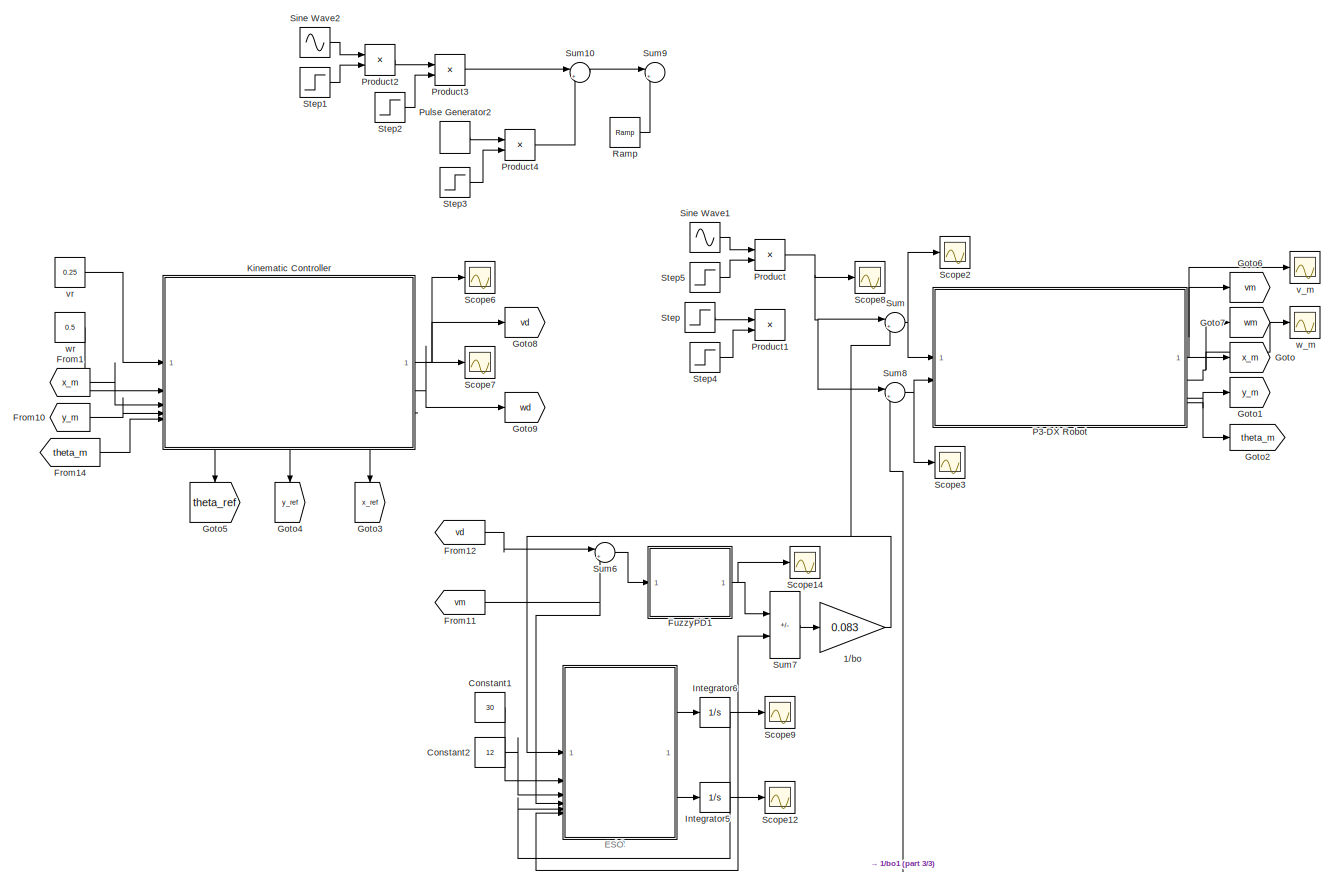
[diagram: root canvas - part 1/3, middle left region]
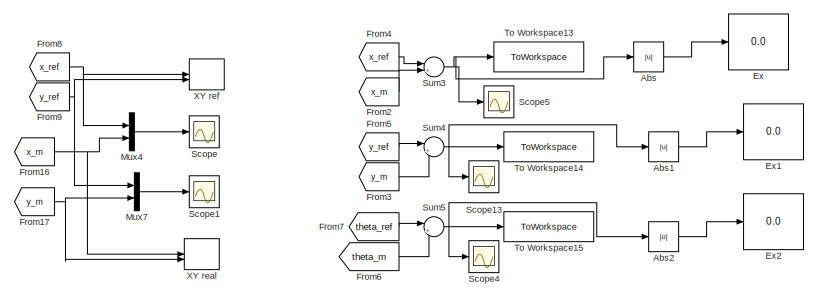
[diagram: root canvas - part 2/3, top right region]
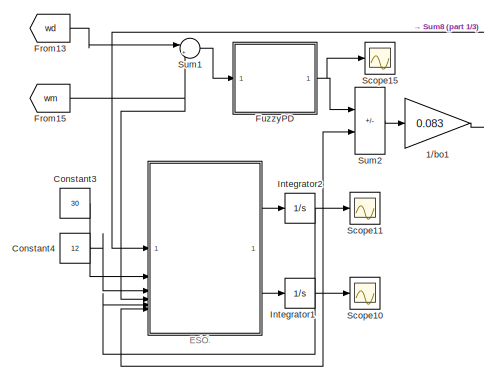
[diagram: root canvas - part 3/3, bottom left region]
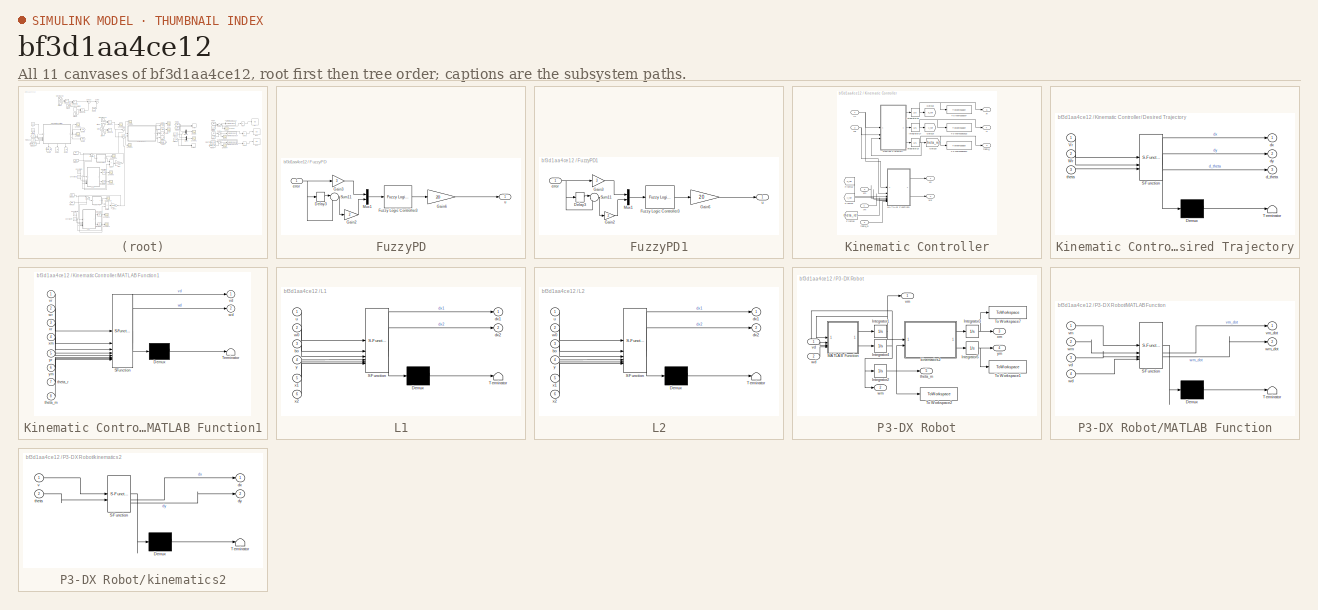
[diagram: thumbnail index - all 11 canvases of the model, root first then tree order]
MODEL slx_bf3d1aa4ce12
KIND model
CONFIG AbsTol = auto
CONFIG EnableMultiTasking = off
CONFIG FixedStep = 0.01
CONFIG MaxStep = auto
CONFIG MinStep = auto
CONFIG RelTol = 1e-2
CONFIG SampleTimeConstraint = Unconstrained
CONFIG SolverName = FixedStepAuto
CONFIG StartTime = 0.0
CONFIG StopTime = 16
BLOCK [Gain] 1//bo
  Gain = 0.083
BLOCK [Gain] 1//bo1
  Gain = 0.083
BLOCK [Abs] Abs
  SaturateOnIntegerOverflow = off
BLOCK [Abs] Abs1
  SaturateOnIntegerOverflow = off
BLOCK [Abs] Abs2
  SaturateOnIntegerOverflow = off
BLOCK [Constant] Constant1
  Value = 30
BLOCK [Constant] Constant2
  Value = 12
BLOCK [Constant] Constant3
  Value = 30
BLOCK [Constant] Constant4
  Value = 12
BLOCK [Display] Ex
  Decimation = 1
BLOCK [Display] Ex1
  Decimation = 1
BLOCK [Display] Ex2
  Decimation = 1
BLOCK [From] From1
  GotoTag = x_m
BLOCK [From] From10
  GotoTag = y_m
BLOCK [From] From11
  GotoTag = vm
BLOCK [From] From12
  GotoTag = vd
BLOCK [From] From13
  GotoTag = wd
BLOCK [From] From14
  GotoTag = theta_m
BLOCK [From] From15
  GotoTag = wm
BLOCK [From] From16
  GotoTag = x_m
BLOCK [From] From17
  GotoTag = y_m
BLOCK [From] From2
  GotoTag = x_m
BLOCK [From] From3
  GotoTag = y_m
BLOCK [From] From4
  GotoTag = x_ref
BLOCK [From] From5
  GotoTag = y_ref
BLOCK [From] From6
  GotoTag = theta_m
BLOCK [From] From7
  GotoTag = theta_ref
BLOCK [From] From8
  GotoTag = x_ref
BLOCK [From] From9
  GotoTag = y_ref
BLOCK [SubSystem] FuzzyPD
BLOCK [Delay] FuzzyPD/Delay3
  DelayLength = 1
  InitialCondition = 0
  InputPortMap = u0
BLOCK [Reference] FuzzyPD/Fuzzy Logic Controller3  REF=fuzblock/Fuzzy Logic   (lib defined in mdl_858b3b3e7478)
Controller
  SourceBlock = fuzblock/Fuzzy Logic \nController
  SourceType = Fuzzy Inference System
BLOCK [Gain] FuzzyPD/Gain2
  Gain = 2
BLOCK [Gain] FuzzyPD/Gain3
  Gain = 3
BLOCK [Gain] FuzzyPD/Gain6
  Gain = 20
BLOCK [Mux] FuzzyPD/Mux1
  DisplayOption = bar
  Inputs = 2
BLOCK [Sum] FuzzyPD/Sum11
  Inputs = |-+
BLOCK [Inport] FuzzyPD/error
BLOCK [Outport] FuzzyPD/u
BLOCK [SubSystem] FuzzyPD1
BLOCK [Delay] FuzzyPD1/Delay3
  DelayLength = 1
  InitialCondition = 0
  InputPortMap = u0
BLOCK [Reference] FuzzyPD1/Fuzzy Logic Controller3  REF=fuzblock/Fuzzy Logic   (lib defined in mdl_858b3b3e7478)
Controller
  SourceBlock = fuzblock/Fuzzy Logic \nController
  SourceType = Fuzzy Inference System
BLOCK [Gain] FuzzyPD1/Gain2
  Gain = 2
BLOCK [Gain] FuzzyPD1/Gain3
  Gain = 3
BLOCK [Gain] FuzzyPD1/Gain6
  Gain = 20
BLOCK [Mux] FuzzyPD1/Mux1
  DisplayOption = bar
  Inputs = 2
BLOCK [Sum] FuzzyPD1/Sum11
  Inputs = |-+
BLOCK [Inport] FuzzyPD1/error
BLOCK [Outport] FuzzyPD1/u
BLOCK [Goto] Goto
  GotoTag = x_m
BLOCK [Goto] Goto1
  GotoTag = y_m
BLOCK [Goto] Goto2
  GotoTag = theta_m
BLOCK [Goto] Goto3
  GotoTag = x_ref
  NameLocation = left
BLOCK [Goto] Goto4
  GotoTag = y_ref
  NameLocation = left
BLOCK [Goto] Goto5
  GotoTag = theta_ref
  NameLocation = left
BLOCK [Goto] Goto6
  GotoTag = vm
BLOCK [Goto] Goto7
  GotoTag = wm
BLOCK [Goto] Goto8
  GotoTag = vd
BLOCK [Goto] Goto9
  GotoTag = wd
BLOCK [Integrator] Integrator1
BLOCK [Integrator] Integrator2
BLOCK [Integrator] Integrator5
BLOCK [Integrator] Integrator6
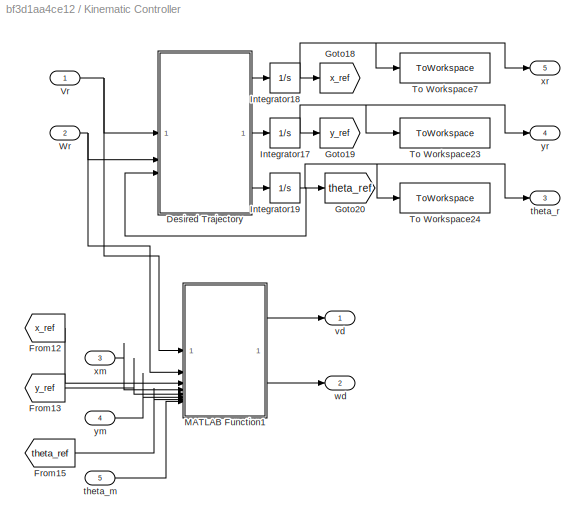
BLOCK [SubSystem] Kinematic Controller
  PortSchema = {"entries":[{"content":{"sides":[{"content":{"connectorIds":["In1","In2","In3","In4","In5"]},"type":"ConnectorPlacement.EquallySpacedRectSide","uuid":"1dde3c4d-b362-4c98-bff5-173134d67a18"},{"content":{"connectorIds":["Out1","Out2"],"side":"RIGHT"},"type":"ConnectorPlacement.EquallySpacedRectSide","uuid":"28a7b07a-1542-4ec6-930a-70e18e33702f"},{"content":{"side":"TOP"},"type":"ConnectorPlacement.E...<+417ch>
BLOCK [SubSystem] Kinematic Controller/ Desired Trajectory
  ErrorFcn = Stateflow.Translate.translate
  PermitHierarchicalResolution = ExplicitOnly
  SFBlockType = MATLAB Function
  TreatAsAtomicUnit = on
BLOCK [Demux] Kinematic Controller/ Desired Trajectory/ Demux 
  Outputs = 1
BLOCK [S-Function] Kinematic Controller/ Desired Trajectory/ SFunction 
  EnableBusSupport = on
  FunctionName = sf_sfun
  PortCounts = [3 4]
  SFcnIsStateOwnerBlock = off
  SFunctionDeploymentMode = off
  Tag = Stateflow S-Function 11
BLOCK [Terminator] Kinematic Controller/ Desired Trajectory/ Terminator 
BLOCK [Inport] Kinematic Controller/ Desired Trajectory/Vr
BLOCK [Inport] Kinematic Controller/ Desired Trajectory/Wr
  Port = 2
BLOCK [Outport] Kinematic Controller/ Desired Trajectory/d_theta
  Port = 3
BLOCK [Outport] Kinematic Controller/ Desired Trajectory/dx
BLOCK [Outport] Kinematic Controller/ Desired Trajectory/dy
  Port = 2
BLOCK [Inport] Kinematic Controller/ Desired Trajectory/theta
  Port = 3
BLOCK [From] Kinematic Controller/From12
  GotoTag = x_ref
BLOCK [From] Kinematic Controller/From13
  GotoTag = y_ref
BLOCK [From] Kinematic Controller/From15
  GotoTag = theta_ref
BLOCK [Goto] Kinematic Controller/Goto18
  GotoTag = x_ref
BLOCK [Goto] Kinematic Controller/Goto19
  GotoTag = y_ref
BLOCK [Goto] Kinematic Controller/Goto20
  GotoTag = theta_ref
BLOCK [Integrator] Kinematic Controller/Integrator17
  InitialCondition = -0.5
BLOCK [Integrator] Kinematic Controller/Integrator18
BLOCK [Integrator] Kinematic Controller/Integrator19
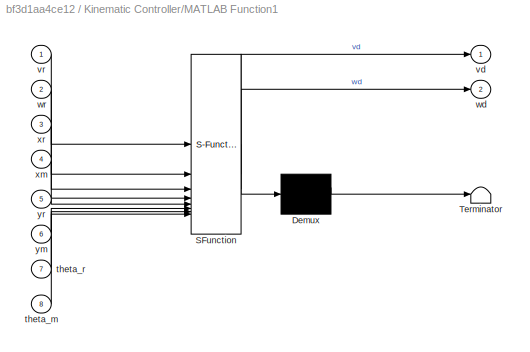
BLOCK [SubSystem] Kinematic Controller/MATLAB Function1
  ErrorFcn = Stateflow.Translate.translate
  PermitHierarchicalResolution = ExplicitOnly
  SFBlockType = MATLAB Function
  TreatAsAtomicUnit = on
BLOCK [Demux] Kinematic Controller/MATLAB Function1/ Demux 
  Outputs = 1
BLOCK [S-Function] Kinematic Controller/MATLAB Function1/ SFunction 
  EnableBusSupport = on
  FunctionName = sf_sfun
  PortCounts = [8 3]
  SFcnIsStateOwnerBlock = off
  SFunctionDeploymentMode = off
  Tag = Stateflow S-Function 1
BLOCK [Terminator] Kinematic Controller/MATLAB Function1/ Terminator 
BLOCK [Inport] Kinematic Controller/MATLAB Function1/theta_m
  Port = 8
BLOCK [Inport] Kinematic Controller/MATLAB Function1/theta_r
  Port = 7
BLOCK [Outport] Kinematic Controller/MATLAB Function1/vd
BLOCK [Inport] Kinematic Controller/MATLAB Function1/vr
BLOCK [Outport] Kinematic Controller/MATLAB Function1/wd
  Port = 2
BLOCK [Inport] Kinematic Controller/MATLAB Function1/wr
  Port = 2
BLOCK [Inport] Kinematic Controller/MATLAB Function1/xm
  Port = 4
BLOCK [Inport] Kinematic Controller/MATLAB Function1/xr
  Port = 3
BLOCK [Inport] Kinematic Controller/MATLAB Function1/ym
  Port = 6
BLOCK [Inport] Kinematic Controller/MATLAB Function1/yr
  Port = 5
BLOCK [ToWorkspace] Kinematic Controller/To Workspace23
  FixptAsFi = on
  MaxDataPoints = inf
  SampleTime = -1
  SaveFormat = Timeseries
  VariableName = y_ref
BLOCK [ToWorkspace] Kinematic Controller/To Workspace24
  FixptAsFi = on
  MaxDataPoints = inf
  SampleTime = -1
  SaveFormat = Timeseries
  VariableName = theta_ref
BLOCK [ToWorkspace] Kinematic Controller/To Workspace7
  FixptAsFi = on
  MaxDataPoints = inf
  SampleTime = -1
  SaveFormat = Timeseries
  VariableName = x_ref
BLOCK [Inport] Kinematic Controller/Vr
BLOCK [Inport] Kinematic Controller/Wr
  Port = 2
BLOCK [Inport] Kinematic Controller/theta_m
  Port = 5
BLOCK [Outport] Kinematic Controller/theta_r
  Port = 3
BLOCK [Outport] Kinematic Controller/vd
BLOCK [Outport] Kinematic Controller/wd
  Port = 2
BLOCK [Inport] Kinematic Controller/xm
  Port = 3
BLOCK [Outport] Kinematic Controller/xr
  Port = 5
BLOCK [Inport] Kinematic Controller/ym
  Port = 4
BLOCK [Outport] Kinematic Controller/yr
  Port = 4
BLOCK [SubSystem] L1
  ErrorFcn = Stateflow.Translate.translate
  PermitHierarchicalResolution = ExplicitOnly
  SFBlockType = MATLAB Function
  TreatAsAtomicUnit = on
BLOCK [Demux] L1/ Demux 
  Outputs = 1
BLOCK [S-Function] L1/ SFunction 
  EnableBusSupport = on
  FunctionName = sf_sfun
  PortCounts = [6 3]
  SFcnIsStateOwnerBlock = off
  SFunctionDeploymentMode = off
  Tag = Stateflow S-Function 4
BLOCK [Terminator] L1/ Terminator 
BLOCK [Inport] L1/bo
  Port = 3
BLOCK [Outport] L1/dx1
BLOCK [Outport] L1/dx2
  Port = 2
BLOCK [Inport] L1/u
BLOCK [Inport] L1/w0
  Port = 2
BLOCK [Inport] L1/x1
  Port = 5
BLOCK [Inport] L1/x2
  Port = 6
BLOCK [Inport] L1/y
  Port = 4
BLOCK [SubSystem] L2
  ErrorFcn = Stateflow.Translate.translate
  PermitHierarchicalResolution = ExplicitOnly
  SFBlockType = MATLAB Function
  TreatAsAtomicUnit = on
BLOCK [Demux] L2/ Demux 
  Outputs = 1
BLOCK [S-Function] L2/ SFunction 
  EnableBusSupport = on
  FunctionName = sf_sfun
  PortCounts = [6 3]
  SFcnIsStateOwnerBlock = off
  SFunctionDeploymentMode = off
  Tag = Stateflow S-Function 9
BLOCK [Terminator] L2/ Terminator 
BLOCK [Inport] L2/bo
  Port = 3
BLOCK [Outport] L2/dx1
BLOCK [Outport] L2/dx2
  Port = 2
BLOCK [Inport] L2/u
BLOCK [Inport] L2/w0
  Port = 2
BLOCK [Inport] L2/x1
  Port = 5
BLOCK [Inport] L2/x2
  Port = 6
BLOCK [Inport] L2/y
  Port = 4
BLOCK [Mux] Mux4
  DisplayOption = bar
  Inputs = 2
BLOCK [Mux] Mux7
  DisplayOption = bar
  Inputs = 2
BLOCK [SubSystem] P3-DX Robot
BLOCK [Integrator] P3-DX Robot/Integrator1
BLOCK [Integrator] P3-DX Robot/Integrator2
BLOCK [Integrator] P3-DX Robot/Integrator3
BLOCK [Integrator] P3-DX Robot/Integrator4
BLOCK [Integrator] P3-DX Robot/Integrator5
BLOCK [SubSystem] P3-DX Robot/MATLAB Function
  ErrorFcn = Stateflow.Translate.translate
  PermitHierarchicalResolution = ExplicitOnly
  SFBlockType = MATLAB Function
  TreatAsAtomicUnit = on
BLOCK [Demux] P3-DX Robot/MATLAB Function/ Demux 
  Outputs = 1
BLOCK [S-Function] P3-DX Robot/MATLAB Function/ SFunction 
  EnableBusSupport = on
  FunctionName = sf_sfun
  PortCounts = [4 3]
  SFcnIsStateOwnerBlock = off
  SFunctionDeploymentMode = off
  Tag = Stateflow S-Function 2
BLOCK [Terminator] P3-DX Robot/MATLAB Function/ Terminator 
BLOCK [Inport] P3-DX Robot/MATLAB Function/vd
  Port = 3
BLOCK [Inport] P3-DX Robot/MATLAB Function/vm
BLOCK [Outport] P3-DX Robot/MATLAB Function/vm_dot
BLOCK [Inport] P3-DX Robot/MATLAB Function/wd
  Port = 4
BLOCK [Inport] P3-DX Robot/MATLAB Function/wm
  Port = 2
BLOCK [Outport] P3-DX Robot/MATLAB Function/wm_dot
  Port = 2
BLOCK [ToWorkspace] P3-DX Robot/To Workspace1
  FixptAsFi = on
  MaxDataPoints = inf
  SampleTime = -1
  SaveFormat = Timeseries
  VariableName = y_m
BLOCK [ToWorkspace] P3-DX Robot/To Workspace2
  FixptAsFi = on
  MaxDataPoints = inf
  SampleTime = -1
  SaveFormat = Timeseries
  VariableName = theta_m
BLOCK [ToWorkspace] P3-DX Robot/To Workspace7
  FixptAsFi = on
  MaxDataPoints = inf
  SampleTime = -1
  SaveFormat = Timeseries
  VariableName = x_m
BLOCK [SubSystem] P3-DX Robot/kinematics2
  ErrorFcn = Stateflow.Translate.translate
  PermitHierarchicalResolution = ExplicitOnly
  SFBlockType = MATLAB Function
  TreatAsAtomicUnit = on
BLOCK [Demux] P3-DX Robot/kinematics2/ Demux 
  Outputs = 1
BLOCK [S-Function] P3-DX Robot/kinematics2/ SFunction 
  EnableBusSupport = on
  FunctionName = sf_sfun
  PortCounts = [2 3]
  SFcnIsStateOwnerBlock = off
  SFunctionDeploymentMode = off
  Tag = Stateflow S-Function 3
BLOCK [Terminator] P3-DX Robot/kinematics2/ Terminator 
BLOCK [Outport] P3-DX Robot/kinematics2/dx
BLOCK [Outport] P3-DX Robot/kinematics2/dy
  Port = 2
BLOCK [Inport] P3-DX Robot/kinematics2/theta
  Port = 2
BLOCK [Inport] P3-DX Robot/kinematics2/v
BLOCK [Outport] P3-DX Robot/theta_m
  Port = 5
BLOCK [Inport] P3-DX Robot/vd
BLOCK [Outport] P3-DX Robot/vm
BLOCK [Inport] P3-DX Robot/wd
  Port = 2
BLOCK [Outport] P3-DX Robot/wm
  Port = 2
BLOCK [Outport] P3-DX Robot/xm
  Port = 3
BLOCK [Outport] P3-DX Robot/ym
  Port = 4
BLOCK [Product] Product
BLOCK [Product] Product1
BLOCK [Product] Product2
BLOCK [Product] Product3
BLOCK [Product] Product4
BLOCK [DiscretePulseGenerator] Pulse Generator2
  Amplitude = 4
  Period = 1
  PhaseDelay = 9.7
  PulseType = Time based
  PulseWidth = 35
BLOCK [Reference] Ramp  REF=simulink/Sources/Ramp
  SourceBlock = simulink/Sources/Ramp
  SourceType = Ramp
BLOCK [Scope] Scope
  Floating = off
  NumInputPorts = 1
  ScopeSpecificationString = Simulink.scopes.TimeScopeBlockCfg('CurrentConfiguration', extmgr.ConfigurationSet(extmgr.Configuration('Core','General UI',true),extmgr.Configuration('Core','Source UI',true),extmgr.Configuration('Sources','WiredSimulink',true,'DataLoggingVariableName','ScopeData1'),extmgr.Configuration('Visuals','Time Domain',true,'SerializedDisplays',{struct('MinYLimReal','-0.66314','MaxYLimReal','0.65225','YLab...<+1486ch>
BLOCK [Scope] Scope1
  Floating = off
  NumInputPorts = 1
  ScopeSpecificationString = Simulink.scopes.TimeScopeBlockCfg('CurrentConfiguration', extmgr.ConfigurationSet(extmgr.Configuration('Core','General UI',true),extmgr.Configuration('Core','Source UI',true),extmgr.Configuration('Sources','WiredSimulink',true,'DataLoggingVariableName','ScopeData2'),extmgr.Configuration('Visuals','Time Domain',true,'SerializedDisplays',{struct('MinYLimReal','-0.125','MaxYLimReal','1.125','YLabelRe...<+1474ch>
BLOCK [Scope] Scope10
  Floating = off
  NumInputPorts = 1
  ScopeSpecificationString = Simulink.scopes.TimeScopeBlockCfg('CurrentConfiguration', extmgr.ConfigurationSet(extmgr.Configuration('Core','General UI',true),extmgr.Configuration('Core','Source UI',true),extmgr.Configuration('Sources','WiredSimulink',true,'DataLoggingVariableName','ScopeData1'),extmgr.Configuration('Visuals','Time Domain',true,'SerializedDisplays',{struct('MinYLimReal','-14.56198','MaxYLimReal','1.618','YLabe...<+1459ch>
BLOCK [Scope] Scope11
  Floating = off
  NumInputPorts = 1
  ScopeSpecificationString = Simulink.scopes.TimeScopeBlockCfg('CurrentConfiguration', extmgr.ConfigurationSet(extmgr.Configuration('Core','General UI',true),extmgr.Configuration('Core','Source UI',true),extmgr.Configuration('Sources','WiredSimulink',true,'DataLoggingVariableName','ScopeData4'),extmgr.Configuration('Visuals','Time Domain',true,'SerializedDisplays',{struct('MinYLimReal','-0.89134','MaxYLimReal','8.02203','YLab...<+1459ch>
BLOCK [Scope] Scope12
  Floating = off
  NumInputPorts = 1
  ScopeSpecificationString = Simulink.scopes.TimeScopeBlockCfg('CurrentConfiguration', extmgr.ConfigurationSet(extmgr.Configuration('Core','General UI',true),extmgr.Configuration('Core','Source UI',true),extmgr.Configuration('Sources','WiredSimulink',true,'DataLoggingVariableName','ScopeData2'),extmgr.Configuration('Visuals','Time Domain',true,'SerializedDisplays',{struct('MinYLimReal','-10.47696','MaxYLimReal','7.20485','YLa...<+1463ch>
BLOCK [Scope] Scope13
  Floating = off
  NumInputPorts = 1
  ScopeSpecificationString = Simulink.scopes.TimeScopeBlockCfg('CurrentConfiguration', extmgr.ConfigurationSet(extmgr.Configuration('Core','General UI',true),extmgr.Configuration('Core','Source UI',true),extmgr.Configuration('Sources','WiredSimulink',true,'DataLoggingVariableName','ScopeData1'),extmgr.Configuration('Visuals','Time Domain',true,'SerializedDisplays',{struct('MinYLimReal','-0.22919','MaxYLimReal','0.0627','YLabe...<+1361ch>
BLOCK [Scope] Scope14
  Floating = off
  NumInputPorts = 1
  ScopeSpecificationString = Simulink.scopes.TimeScopeBlockCfg('CurrentConfiguration', extmgr.ConfigurationSet(extmgr.Configuration('Core','General UI',true),extmgr.Configuration('Core','Source UI',true),extmgr.Configuration('Sources','WiredSimulink',true,'DataLoggingVariableName','ScopeData1'),extmgr.Configuration('Visuals','Time Domain',true,'SerializedDisplays',{struct('MinYLimReal','-4.81821','MaxYLimReal','10.20095','YLa...<+1460ch>
BLOCK [Scope] Scope15
  Floating = off
  NumInputPorts = 1
  ScopeSpecificationString = Simulink.scopes.TimeScopeBlockCfg('CurrentConfiguration', extmgr.ConfigurationSet(extmgr.Configuration('Core','General UI',true),extmgr.Configuration('Core','Source UI',true),extmgr.Configuration('Sources','WiredSimulink',true,'DataLoggingVariableName','ScopeData2'),extmgr.Configuration('Visuals','Time Domain',true,'SerializedDisplays',{struct('MinYLimReal','-4.7975','MaxYLimReal','9.49232','YLabe...<+1453ch>
BLOCK [Scope] Scope2
  Floating = off
  NumInputPorts = 1
  ScopeSpecificationString = Simulink.scopes.TimeScopeBlockCfg('CurrentConfiguration', extmgr.ConfigurationSet(extmgr.Configuration('Core','General UI',true),extmgr.Configuration('Core','Source UI',true),extmgr.Configuration('Sources','WiredSimulink',true,'DataLoggingVariableName','ScopeData3'),extmgr.Configuration('Visuals','Time Domain',true,'SerializedDisplays',{struct('MinYLimReal','-14.4737','MaxYLimReal','21.36553','YLa...<+1480ch>
BLOCK [Scope] Scope3
  Floating = off
  NumInputPorts = 1
  ScopeSpecificationString = Simulink.scopes.TimeScopeBlockCfg('CurrentConfiguration', extmgr.ConfigurationSet(extmgr.Configuration('Core','General UI',true),extmgr.Configuration('Core','Source UI',true),extmgr.Configuration('Sources','WiredSimulink',true,'DataLoggingVariableName','ScopeData4'),extmgr.Configuration('Visuals','Time Domain',true,'SerializedDisplays',{struct('MinYLimReal','0.11565','MaxYLimReal','1.65637','YLabe...<+1450ch>
BLOCK [Scope] Scope4
  Floating = off
  NumInputPorts = 1
  ScopeSpecificationString = Simulink.scopes.TimeScopeBlockCfg('CurrentConfiguration', extmgr.ConfigurationSet(extmgr.Configuration('Core','General UI',true),extmgr.Configuration('Core','Source UI',true),extmgr.Configuration('Sources','WiredSimulink',true,'DataLoggingVariableName','ScopeData2'),extmgr.Configuration('Visuals','Time Domain',true,'SerializedDisplays',{struct('MinYLimReal','-0.22919','MaxYLimReal','0.0627','YLabe...<+1361ch>
BLOCK [Scope] Scope5
  Floating = off
  NumInputPorts = 1
  ScopeSpecificationString = Simulink.scopes.TimeScopeBlockCfg('CurrentConfiguration', extmgr.ConfigurationSet(extmgr.Configuration('Core','General UI',true),extmgr.Configuration('Core','Source UI',true),extmgr.Configuration('Sources','WiredSimulink',true,'DataLoggingVariableName','ScopeData3'),extmgr.Configuration('Visuals','Time Domain',true,'SerializedDisplays',{struct('MinYLimReal','-0.00767','MaxYLimReal','0.03944','YLab...<+1521ch>
BLOCK [Scope] Scope6
  Floating = off
  NumInputPorts = 1
  ScopeSpecificationString = Simulink.scopes.TimeScopeBlockCfg('CurrentConfiguration', extmgr.ConfigurationSet(extmgr.Configuration('Core','General UI',true),extmgr.Configuration('Core','Source UI',true),extmgr.Configuration('Sources','WiredSimulink',true,'DataLoggingVariableName','ScopeData5'),extmgr.Configuration('Visuals','Time Domain',true,'SerializedDisplays',{struct('MinYLimReal','0.1454','MaxYLimReal','0.30092','YLabel...<+1465ch>
BLOCK [Scope] Scope7
  Floating = off
  NumInputPorts = 1
  ScopeSpecificationString = Simulink.scopes.TimeScopeBlockCfg('CurrentConfiguration', extmgr.ConfigurationSet(extmgr.Configuration('Core','General UI',true),extmgr.Configuration('Core','Source UI',true),extmgr.Configuration('Sources','WiredSimulink',true,'DataLoggingVariableName','ScopeData6'),extmgr.Configuration('Visuals','Time Domain',true),extmgr.Configuration('Tools','Plot Navigation',true),extmgr.Configuration('Tools',...<+40ch>
BLOCK [Scope] Scope8
  Floating = off
  NumInputPorts = 1
  ScopeSpecificationString = Simulink.scopes.TimeScopeBlockCfg('CurrentConfiguration', extmgr.ConfigurationSet(extmgr.Configuration('Core','General UI',true),extmgr.Configuration('Core','Source UI',true),extmgr.Configuration('Sources','WiredSimulink',true,'DataLoggingVariableName','ScopeData7'),extmgr.Configuration('Visuals','Time Domain',true,'SerializedDisplays',{struct('MinYLimReal','-24.99996','MaxYLimReal','24.99982','YL...<+1515ch>
BLOCK [Scope] Scope9
  Floating = off
  NumInputPorts = 1
  ScopeSpecificationString = Simulink.scopes.TimeScopeBlockCfg('CurrentConfiguration', extmgr.ConfigurationSet(extmgr.Configuration('Core','General UI',true),extmgr.Configuration('Core','Source UI',true),extmgr.Configuration('Sources','WiredSimulink',true,'DataLoggingVariableName','ScopeData3'),extmgr.Configuration('Visuals','Time Domain',true,'SerializedDisplays',{struct('MinYLimReal','-0.03926','MaxYLimReal','0.35337','YLab...<+1459ch>
BLOCK [Sin] Sine Wave1
  Amplitude = 3
  Frequency = 1.5
  SampleTime = 0
BLOCK [Sin] Sine Wave2
  Amplitude = 4
  Frequency = 2
  SampleTime = 0
BLOCK [Step] Step
  After = 1.8
  SampleTime = 0
  Time = 8
BLOCK [Step] Step1
  SampleTime = 0
  Time = 3.2
BLOCK [Step] Step2
  After = 0
  Before = 1
  SampleTime = 0
  Time = 9.4
BLOCK [Step] Step3
  After = 0
  Before = 1
  SampleTime = 0
  Time = 14
BLOCK [Step] Step4
  After = 0
  Before = 1.8
  SampleTime = 0
  Time = 10
BLOCK [Step] Step5
  SampleTime = 0
  Time = 7
BLOCK [Sum] Sum
  Inputs = |++
BLOCK [Sum] Sum1
  Inputs = |+-
BLOCK [Sum] Sum10
  Inputs = |++
BLOCK [Sum] Sum2
  IconShape = rectangular
  Inputs = +-
BLOCK [Sum] Sum3
  Inputs = |+-
BLOCK [Sum] Sum4
  Inputs = |+-
BLOCK [Sum] Sum5
  Inputs = |+-
BLOCK [Sum] Sum6
  Inputs = |+-
BLOCK [Sum] Sum7
  IconShape = rectangular
  Inputs = +-
BLOCK [Sum] Sum8
  Inputs = |++
BLOCK [Sum] Sum9
  Inputs = |++
BLOCK [ToWorkspace] To Workspace13
  FixptAsFi = on
  MaxDataPoints = inf
  SampleTime = -1
  SaveFormat = Timeseries
  VariableName = ex
BLOCK [ToWorkspace] To Workspace14
  FixptAsFi = on
  MaxDataPoints = inf
  SampleTime = -1
  SaveFormat = Timeseries
  VariableName = ey
BLOCK [ToWorkspace] To Workspace15
  FixptAsFi = on
  MaxDataPoints = inf
  SampleTime = -1
  SaveFormat = Timeseries
  VariableName = etheta
BLOCK [Record] XY real
  CompatibilityTag = XY
  FileSettingsInternal = {"entries":[{"content":{"excelSettings":{"content":{},"type":"Streamout.ExcelSettings"}},"type":"Streamout.FileSettingStorage","uuid":""}],"packageUris":["http:\/\/schema.mathworks.com\/mf0\/streamout_blocks\/R2020a"],"version":"1.0"}
  Layout = [1 1]
  SignalsInternal = {"entries":[{"content":{"signals":[{"content":{"blockPath":[],"dimensions":[1],"domain":"","lineColor":"#d95319","lineWidth":2,"port":1,"sid":[""],"signalID":1,"signalName":"From16"},"type":"RecordBlkView.Signal","uuid":""},{"content":{"blockPath":[],"dimensions":[1],"domain":"","lineColor":"#edb120","lineWidth":2,"port":2,"sid":[""],"signalID":2,"signalName":"From17"},"type":"RecordBlkView.Signal...<+158ch>
  VisualizationBindings = {"xyplotplugin":{"info":[{"series":[],"subplotID":1}]}}
BLOCK [Record] XY ref
  CompatibilityTag = XY
  FileSettingsInternal = {"entries":[{"content":{"excelSettings":{"content":{},"type":"Streamout.ExcelSettings"}},"type":"Streamout.FileSettingStorage","uuid":""}],"packageUris":["http:\/\/schema.mathworks.com\/mf0\/streamout_blocks\/R2020a"],"version":"1.0"}
  Layout = [1 1]
  SignalsInternal = {"entries":[{"content":{"signals":[{"content":{"blockPath":[],"dimensions":[1],"domain":"","lineColor":"#7e2f8e","lineWidth":2,"port":1,"sid":[""],"signalID":1,"signalName":"From8"},"type":"RecordBlkView.Signal","uuid":""},{"content":{"blockPath":[],"dimensions":[1],"domain":"","lineColor":"#77ac30","lineWidth":2,"port":2,"sid":[""],"signalID":2,"signalName":"From9"},"type":"RecordBlkView.Signal",...<+156ch>
  VisualizationBindings = {"xyplotplugin":{"info":[{"series":[],"subplotID":1}]}}
BLOCK [Scope] v_m
  Floating = off
  NumInputPorts = 1
  ScopeSpecificationString = Simulink.scopes.TimeScopeBlockCfg('CurrentConfiguration', extmgr.ConfigurationSet(extmgr.Configuration('Core','General UI',true),extmgr.Configuration('Core','Source UI',true),extmgr.Configuration('Sources','WiredSimulink',true,'DataLoggingVariableName','ScopeData1'),extmgr.Configuration('Visuals','Time Domain',true,'SerializedDisplays',{struct('MinYLimReal','-0.61109','MaxYLimReal','0.86983','YLab...<+1461ch>
BLOCK [Constant] vr
  Value = 0.25
BLOCK [Scope] w_m
  Floating = off
  NumInputPorts = 1
  ScopeSpecificationString = Simulink.scopes.TimeScopeBlockCfg('CurrentConfiguration', extmgr.ConfigurationSet(extmgr.Configuration('Core','General UI',true),extmgr.Configuration('Core','Source UI',true),extmgr.Configuration('Sources','WiredSimulink',true,'DataLoggingVariableName','ScopeData2'),extmgr.Configuration('Visuals','Time Domain',true,'SerializedDisplays',{struct('MinYLimReal','-0.07829','MaxYLimReal','0.70458','YLab...<+1486ch>
BLOCK [Constant] wr
  Value = 0.5
ANNOTATION (root): ESO
NET 1//bo1:1 -> L1:1, Sum8:2
NET 1//bo:1 -> L2:1, Sum:2
LINE Abs1:1 -> Ex1:1
LINE Abs2:1 -> Ex2:1
LINE Abs:1 -> Ex:1
LINE Constant1:1 -> L2:2
LINE Constant2:1 -> L2:3
LINE Constant3:1 -> L1:2
LINE Constant4:1 -> L1:3
LINE From10:1 -> Kinematic Controller:4
NET From11:1 -> L2:4, Sum6:2
LINE From12:1 -> Sum6:1
LINE From13:1 -> Sum1:1
LINE From14:1 -> Kinematic Controller:5
NET From15:1 -> L1:4, Sum1:2
NET From16:1 -> Mux4:2, XY real:1
NET From17:1 -> Mux7:2, XY real:2
LINE From1:1 -> Kinematic Controller:3
LINE From2:1 -> Sum3:2
LINE From3:1 -> Sum4:2
LINE From4:1 -> Sum3:1
LINE From5:1 -> Sum4:1
LINE From6:1 -> Sum5:2
LINE From7:1 -> Sum5:1
NET From8:1 -> Mux4:1, XY ref:1
NET From9:1 -> Mux7:1, XY ref:2
LINE FuzzyPD/Delay3:1 -> FuzzyPD/Sum11:1
LINE FuzzyPD/Fuzzy Logic Controller3:1 -> FuzzyPD/Gain6:1
LINE FuzzyPD/Gain2:1 -> FuzzyPD/Mux1:2
LINE FuzzyPD/Gain3:1 -> FuzzyPD/Mux1:1
LINE FuzzyPD/Gain6:1 -> FuzzyPD/u:1
LINE FuzzyPD/Mux1:1 -> FuzzyPD/Fuzzy Logic Controller3:1
LINE FuzzyPD/Sum11:1 -> FuzzyPD/Gain2:1
NET FuzzyPD/error:1 -> FuzzyPD/Delay3:1, FuzzyPD/Gain3:1, FuzzyPD/Sum11:2
LINE FuzzyPD1/Delay3:1 -> FuzzyPD1/Sum11:1
LINE FuzzyPD1/Fuzzy Logic Controller3:1 -> FuzzyPD1/Gain6:1
LINE FuzzyPD1/Gain2:1 -> FuzzyPD1/Mux1:2
LINE FuzzyPD1/Gain3:1 -> FuzzyPD1/Mux1:1
LINE FuzzyPD1/Gain6:1 -> FuzzyPD1/u:1
LINE FuzzyPD1/Mux1:1 -> FuzzyPD1/Fuzzy Logic Controller3:1
LINE FuzzyPD1/Sum11:1 -> FuzzyPD1/Gain2:1
NET FuzzyPD1/error:1 -> FuzzyPD1/Delay3:1, FuzzyPD1/Gain3:1, FuzzyPD1/Sum11:2
NET FuzzyPD1:1 -> Scope14:1, Sum7:1
NET FuzzyPD:1 -> Scope15:1, Sum2:1
NET Integrator1:1 -> L1:6, Scope10:1, Sum2:2
NET Integrator2:1 -> L1:5, Scope11:1
NET Integrator5:1 -> L2:6, Scope12:1, Sum7:2
NET Integrator6:1 -> L2:5, Scope9:1
LINE Kinematic Controller/ Desired Trajectory:1 -> Kinematic Controller/Integrator18:1
LINE Kinematic Controller/ Desired Trajectory:2 -> Kinematic Controller/Integrator17:1
LINE Kinematic Controller/ Desired Trajectory:3 -> Kinematic Controller/Integrator19:1
LINE Kinematic Controller/From12:1 -> Kinematic Controller/MATLAB Function1:3
LINE Kinematic Controller/From13:1 -> Kinematic Controller/MATLAB Function1:5
LINE Kinematic Controller/From15:1 -> Kinematic Controller/MATLAB Function1:7
NET Kinematic Controller/Integrator17:1 -> Kinematic Controller/Goto19:1, Kinematic Controller/To Workspace23:1, Kinematic Controller/yr:1
NET Kinematic Controller/Integrator18:1 -> Kinematic Controller/Goto18:1, Kinematic Controller/To Workspace7:1, Kinematic Controller/xr:1
NET Kinematic Controller/Integrator19:1 -> Kinematic Controller/ Desired Trajectory:3, Kinematic Controller/Goto20:1, Kinematic Controller/To Workspace24:1, Kinematic Controller/theta_r:1
LINE Kinematic Controller/MATLAB Function1:1 -> Kinematic Controller/vd:1
LINE Kinematic Controller/MATLAB Function1:2 -> Kinematic Controller/wd:1
NET Kinematic Controller/Vr:1 -> Kinematic Controller/ Desired Trajectory:1, Kinematic Controller/MATLAB Function1:1
NET Kinematic Controller/Wr:1 -> Kinematic Controller/ Desired Trajectory:2, Kinematic Controller/MATLAB Function1:2
LINE Kinematic Controller/theta_m:1 -> Kinematic Controller/MATLAB Function1:8
LINE Kinematic Controller/xm:1 -> Kinematic Controller/MATLAB Function1:4
LINE Kinematic Controller/ym:1 -> Kinematic Controller/MATLAB Function1:6
NET Kinematic Controller:1 -> Goto8:1, Scope6:1
NET Kinematic Controller:2 -> Goto9:1, Scope7:1
LINE Kinematic Controller:3 -> Goto5:1
LINE Kinematic Controller:4 -> Goto4:1
LINE Kinematic Controller:5 -> Goto3:1
LINE L1:1 -> Integrator2:1
LINE L1:2 -> Integrator1:1
LINE L2:1 -> Integrator6:1
LINE L2:2 -> Integrator5:1
LINE Mux4:1 -> Scope:1
LINE Mux7:1 -> Scope1:1
NET P3-DX Robot/Integrator1:1 -> P3-DX Robot/MATLAB Function:1, P3-DX Robot/kinematics2:1, P3-DX Robot/vm:1
NET P3-DX Robot/Integrator2:1 -> P3-DX Robot/To Workspace2:1, P3-DX Robot/kinematics2:2, P3-DX Robot/theta_m:1
NET P3-DX Robot/Integrator3:1 -> P3-DX Robot/To Workspace7:1, P3-DX Robot/xm:1
NET P3-DX Robot/Integrator4:1 -> P3-DX Robot/Integrator2:1, P3-DX Robot/MATLAB Function:2, P3-DX Robot/wm:1
NET P3-DX Robot/Integrator5:1 -> P3-DX Robot/To Workspace1:1, P3-DX Robot/ym:1
LINE P3-DX Robot/MATLAB Function:1 -> P3-DX Robot/Integrator1:1
LINE P3-DX Robot/MATLAB Function:2 -> P3-DX Robot/Integrator4:1
LINE P3-DX Robot/kinematics2:1 -> P3-DX Robot/Integrator3:1
LINE P3-DX Robot/kinematics2:2 -> P3-DX Robot/Integrator5:1
LINE P3-DX Robot/vd:1 -> P3-DX Robot/MATLAB Function:3
LINE P3-DX Robot/wd:1 -> P3-DX Robot/MATLAB Function:4
NET P3-DX Robot:1 -> Goto6:1, v_m:1
NET P3-DX Robot:2 -> Goto7:1, w_m:1
LINE P3-DX Robot:3 -> Goto:1
LINE P3-DX Robot:4 -> Goto1:1
LINE P3-DX Robot:5 -> Goto2:1
LINE Product2:1 -> Product3:1
LINE Product3:1 -> Sum10:1
LINE Product4:1 -> Sum10:2
NET Product:1 -> Scope8:1, Sum8:1, Sum:1
LINE Pulse Generator2:1 -> Product4:1
LINE Ramp:1 -> Sum9:2
LINE Sine Wave1:1 -> Product:1
LINE Sine Wave2:1 -> Product2:1
LINE Step1:1 -> Product2:2
LINE Step2:1 -> Product3:2
LINE Step3:1 -> Product4:2
LINE Step4:1 -> Product1:2
LINE Step5:1 -> Product:2
LINE Step:1 -> Product1:1
LINE Sum10:1 -> Sum9:1
LINE Sum1:1 -> FuzzyPD:1
LINE Sum2:1 -> 1//bo1:1
NET Sum3:1 -> Abs:1, Scope5:1, To Workspace13:1
NET Sum4:1 -> Abs1:1, Scope13:1, To Workspace14:1
NET Sum5:1 -> Abs2:1, Scope4:1, To Workspace15:1
LINE Sum6:1 -> FuzzyPD1:1
LINE Sum7:1 -> 1//bo:1
NET Sum8:1 -> P3-DX Robot:2, Scope3:1
NET Sum:1 -> P3-DX Robot:1, Scope2:1
LINE vr:1 -> Kinematic Controller:1
LINE wr:1 -> Kinematic Controller:2
note: NET lines group one-source signal fan-out (src -> all destinations, sorted); 1:1 wires keep LINE
CHART Kinematic Controller/MATLAB Function1 states=1 transitions=1
  STATE_LABEL 'eML_blk_kernel()'
  STATE_LABEL 'SCRIPT:\nfunction [vd, wd] = fcn(vr, wr, xr, xm, yr, ym, theta_r, theta_m)\nex = ((xr - xm) * cos(theta_m)) + ((yr - ym) * sin(theta_m));\ney = - ((xr - xm) * sin(theta_m)) + ((yr - ym) * cos(theta_m));\n\netheta = theta_r - theta_m;\n\nkx = 0.8;\nky = 0.8;\nkth = 0.8;\n\nvd = (kx * ex) + (vr * cos(etheta));\nwd = (ky * vr * ey ) + wr + (kth * sin(etheta));'
CHART P3-DX Robot/MATLAB Function states=1 transitions=1
  STATE_LABEL 'eML_blk_kernel()'
  STATE_LABEL 'SCRIPT:\nfunction[vm_dot, wm_dot] = fcn(vm,wm,vd,wd)\nk1 = 0.24089;\nk2 = 0.2424;\nk3 = -0.00093603;\nk4 = 0.99629;\nk5 = -0.0057256;\nk6 = 1;\n\n\nvm_dot = ((k3/k1) * (wm*wm)) - ((k4/k1) * vm) + (vd/k1);\nwm_dot = - ((k5/k2) * (vm*wm)) - ((k6/k2) * wm) + (wd/k2);\n'
CHART P3-DX Robot/kinematics2 states=1 transitions=1
  STATE_LABEL 'eML_blk_kernel()'
  STATE_LABEL 'SCRIPT:\nfunction [dx, dy] = kinematics(v, theta)\n\n\ndx =  v .* cos(theta);\ndy =  v .* sin(theta);\n'
CHART L1 states=1 transitions=1
  STATE_LABEL 'eML_blk_kernel()'
  STATE_LABEL 'SCRIPT:\nfunction [dx1,dx2] =ESO(u,w0,bo,y, x1,x2)\n\n%bo=[15.5311 -3.5587;\n   % -3.5587 15.5311];\n% l1, l2, l3 ARE THE OBSERVER GAINS IN ESO calcualated using w0\nL1=2*w0;   \nL2=w0^2;\n\ne = x1-y;\n\ndx1 = x2 + (bo * u) - (L1 * e);\ndx2 = - (L2 * e);\n\n%dx1 = reshape(dx1, 1, []);\n%dx2 = reshape(dx2, 1, []);\n\n\n\n\n'
CHART L2 states=1 transitions=1
  STATE_LABEL 'eML_blk_kernel()'
  STATE_LABEL 'SCRIPT:\nfunction [dx1,dx2] =ESO(u,w0,bo,y, x1,x2)\n\n%bo=[15.5311 -3.5587;\n   % -3.5587 15.5311];\n% l1, l2, l3 ARE THE OBSERVER GAINS IN ESO calcualated using w0\nL1=2*w0;   \nL2=w0^2;\n\ne = x1-y;\n\ndx1 = x2 + (bo * u) - (L1 * e);\ndx2 = - (L2 * e);\n\n%dx1 = reshape(dx1, 1, []);\n%dx2 = reshape(dx2, 1, []);\n\n\n\n\n'
CHART Kinematic Controller/ Desired Trajectory states=1 transitions=1
  STATE_LABEL 'eML_blk_kernel()'
  STATE_LABEL 'SCRIPT:\nfunction [dx, dy, d_theta] = desiredtraj(Vr, Wr, theta)\n    dx = cos(theta) * Vr ;\n    dy = sin(theta) * Vr ;\n    d_theta = Wr;\n    \n\nend\n'
CHART  states=0 transitions=0
CHART  states=0 transitions=0
CHART  states=0 transitions=0
CHART  states=0 transitions=0
CHART  states=0 transitions=0
CHART  states=0 transitions=0
